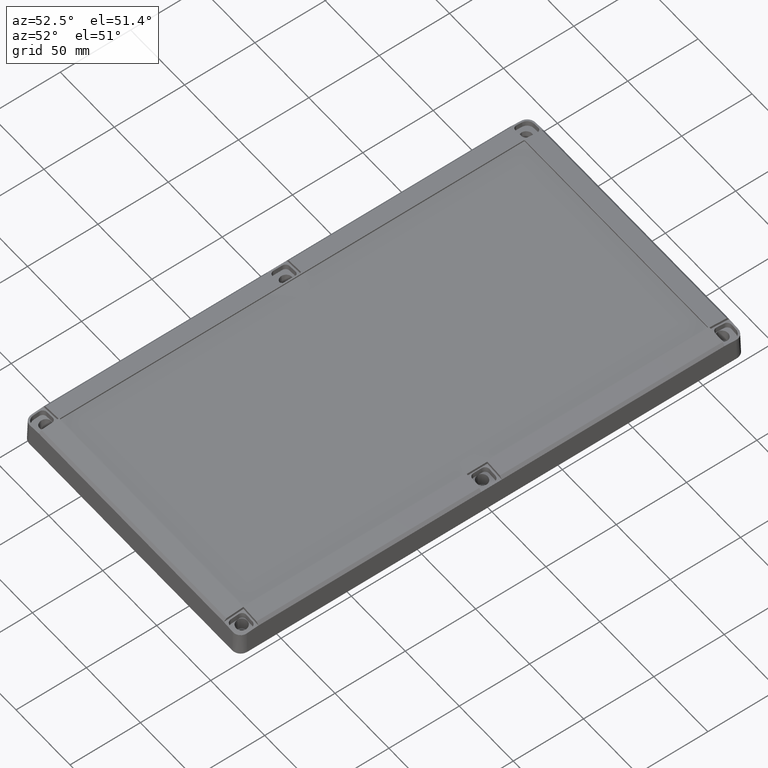
[diagram: clean part render]
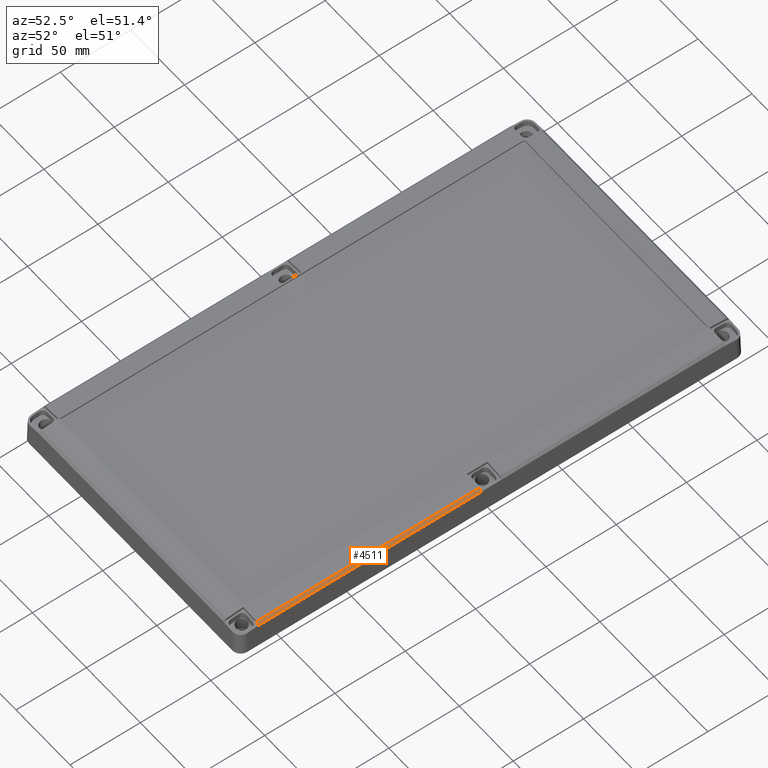
[diagram: same view with one face highlighted and labeled with its STEP entity id]
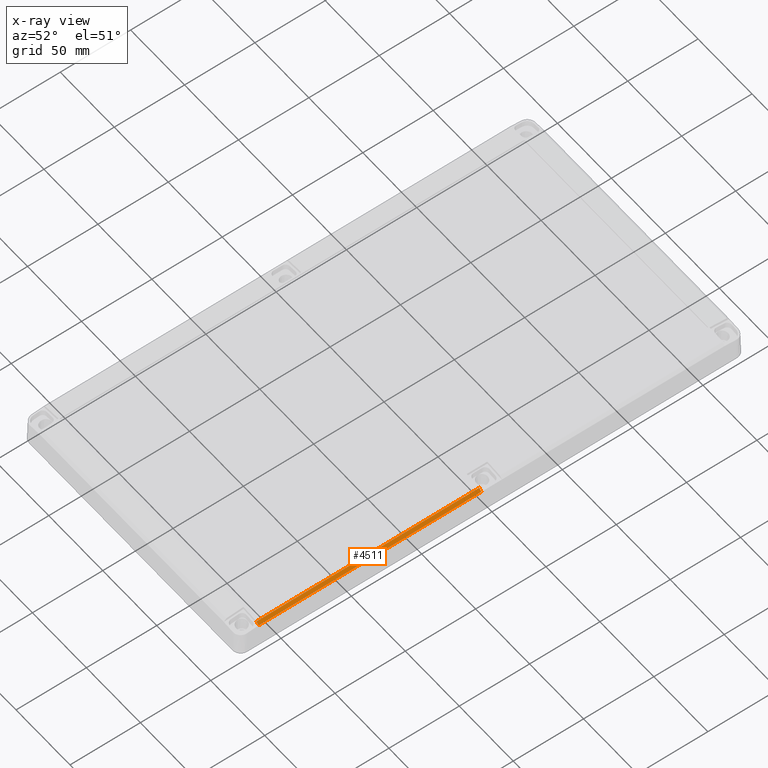
[diagram: x-ray of the same camera — body ghosted, the highlighted face saturated]
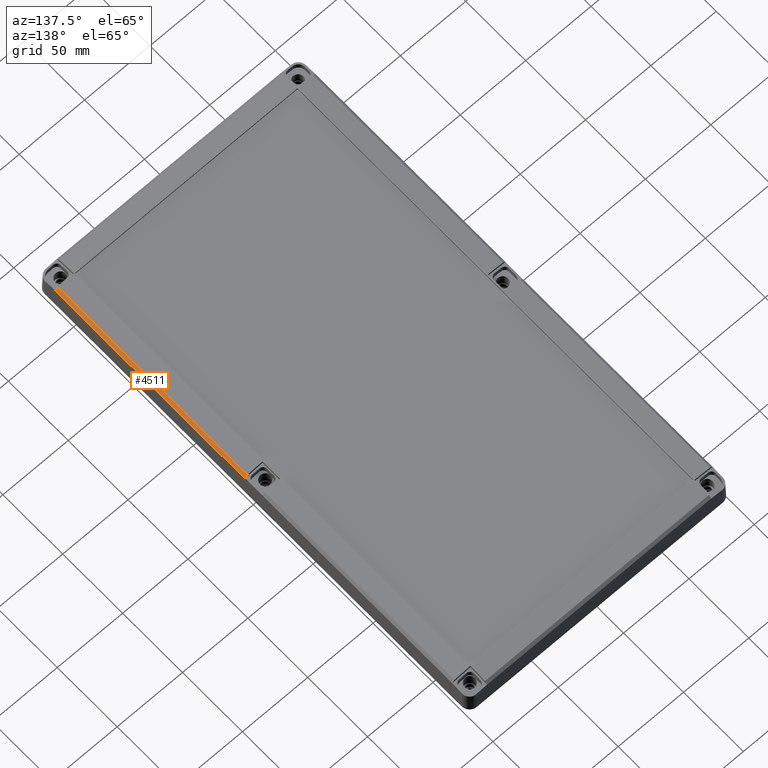
[diagram: same view with one face highlighted and labeled with its STEP entity id]
A machine part, auxiliary view. The second image highlights one B-rep face of the part: STEP entity #4511.
The next image is the same camera in x-ray: the body ghosted, the highlighted face saturated — about 0% of this face is hidden behind the body in this view.
A second angle (auxiliary view) of the same face is appended — the face is thin or edge-on in the first view.
In plain terms, the highlighted planar face has unit normal (-0.7314, -0, -0.682).
Its self-contained STEP definition (entity closure, byte-faithful):
#241 = PLANE ( 'NONE',  #6862 ) ;
#623 = VERTEX_POINT ( 'NONE', #3519 ) ;
#641 = EDGE_CURVE ( 'NONE', #623, #2808, #2399, .T. ) ;
#655 = VERTEX_POINT ( 'NONE', #1488 ) ;
#682 = ORIENTED_EDGE ( 'NONE', *, *, #3960, .F. ) ;
#797 = EDGE_CURVE ( 'NONE', #655, #3106, #5663, .T. ) ;
#984 = ORIENTED_EDGE ( 'NONE', *, *, #797, .F. ) ;
#995 = VECTOR ( 'NONE', #6234, 1000.000000000000000 ) ;
#1183 = ORIENTED_EDGE ( 'NONE', *, *, #641, .F. ) ;
#1254 = ORIENTED_EDGE ( 'NONE', *, *, #6626, .F. ) ;
#1427 = CARTESIAN_POINT ( 'NONE',  ( 99.64292753762652000, -165.7123091044530300, 17.00130928958510200 ) ) ;
#1488 = CARTESIAN_POINT ( 'NONE',  ( 97.83568255608813000, -165.6807712624866400, 18.93934225913595900 ) ) ;
#1599 = VECTOR ( 'NONE', #2229, 1000.000000000000100 ) ;
#1876 = CARTESIAN_POINT ( 'NONE',  ( 92.55663635690946500, -165.5886519270347300, 24.60042622190976800 ) ) ;
#2229 = DIRECTION ( 'NONE',  ( 0.6819518471396209800, 0.01167892161180139100, -0.7313038226160482000 ) ) ;
#2354 = DIRECTION ( 'NONE',  ( -0.7313537016191629100, -0.0000000000000000000, -0.6819983600625068000 ) ) ;
#2380 = FACE_OUTER_BOUND ( 'NONE', #4823, .T. ) ;
#2399 = LINE ( 'NONE', #1427, #995 ) ;
#2404 = DIRECTION ( 'NONE',  ( -0.6819500692476746500, 0.01190002603126785200, 0.7313019160603552200 ) ) ;
#2738 = VECTOR ( 'NONE', #2404, 1000.000000000000100 ) ;
#2808 = VERTEX_POINT ( 'NONE', #5060 ) ;
#3021 = LINE ( 'NONE', #6440, #1599 ) ;
#3106 = VERTEX_POINT ( 'NONE', #6322 ) ;
#3243 = DIRECTION ( 'NONE',  ( 0.0000000000000000000, 1.000000000000000000, 0.0000000000000000000 ) ) ;
#3519 = CARTESIAN_POINT ( 'NONE',  ( 99.64292753762652000, -7.300001399412753500, 17.00130928958510200 ) ) ;
#3960 = EDGE_CURVE ( 'NONE', #2808, #655, #3977, .T. ) ;
#3977 = LINE ( 'NONE', #1876, #2738 ) ;
#4218 = VECTOR ( 'NONE', #3243, 1000.000000000000000 ) ;
#4511 = ADVANCED_FACE ( 'NONE', ( #2380 ), #241, .F. ) ;
#4823 = EDGE_LOOP ( 'NONE', ( #1254, #984, #682, #1183 ) ) ;
#5060 = CARTESIAN_POINT ( 'NONE',  ( 99.64292753762652000, -165.7123076803199000, 17.00130928958510200 ) ) ;
#5546 = CARTESIAN_POINT ( 'NONE',  ( 99.64292753762652000, -180.0999999999999900, 17.00130928958509500 ) ) ;
#5663 = LINE ( 'NONE', #6452, #4218 ) ;
#6090 = DIRECTION ( 'NONE',  ( 0.0000000000000000000, -1.000000000000000000, 0.0000000000000000000 ) ) ;
#6234 = DIRECTION ( 'NONE',  ( -0.0000000000000000000, -1.000000000000000000, -0.0000000000000000000 ) ) ;
#6322 = CARTESIAN_POINT ( 'NONE',  ( 97.83568255608813000, -7.330951784782680400, 18.93934225913595900 ) ) ;
#6440 = CARTESIAN_POINT ( 'NONE',  ( 92.82620518307533100, -7.416742729995167600, 24.31134904753140100 ) ) ;
#6452 = CARTESIAN_POINT ( 'NONE',  ( 97.83568255608813000, -7.300000000000000700, 18.93934225913595900 ) ) ;
#6626 = EDGE_CURVE ( 'NONE', #3106, #623, #3021, .T. ) ;
#6862 = AXIS2_PLACEMENT_3D ( 'NONE', #5546, #2354, #6090 ) ;